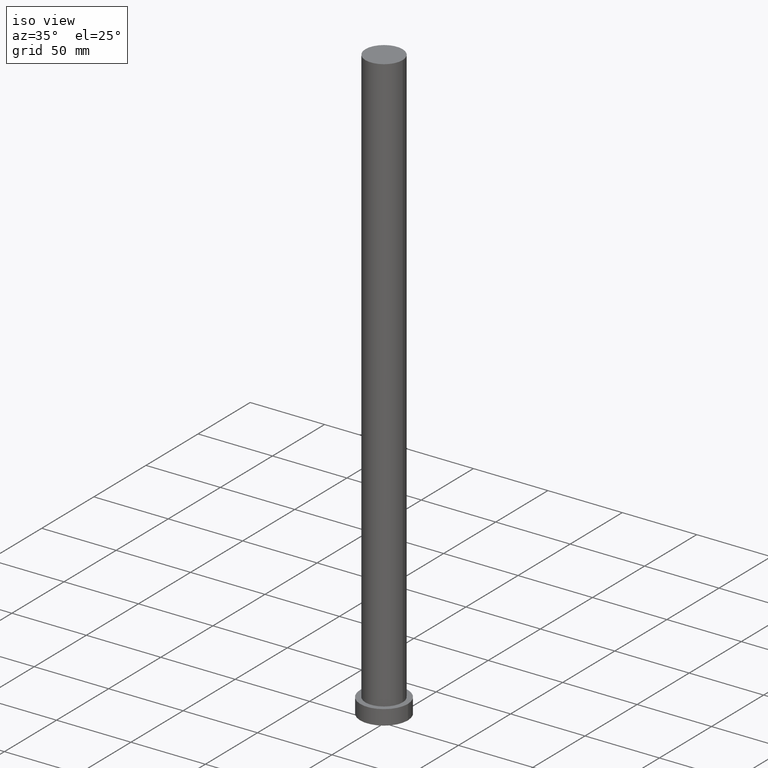
[diagram: clean part render]
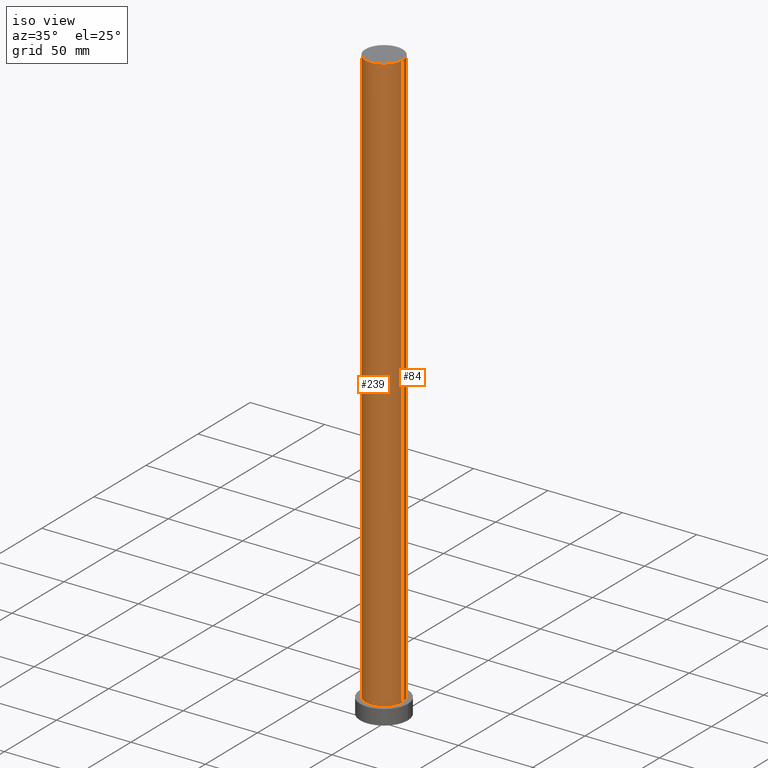
[diagram: same view with one multi-face feature highlighted, each face labeled with its STEP entity id]
A machine part, iso view. The highlighted faces form ONE feature: a constant-radius fillet chain: 2 tangent blend faces with common blend radius 12.5 mm. The faces share edges in the B-rep.
Their STEP definitions:
[1] entity #84 (Cylinder):
#11 = DIRECTION ( 'NONE',  ( 0.000000000000000000, 0.000000000000000000, 1.000000000000000000 ) ) ;
#14 = DIRECTION ( 'NONE',  ( -1.000000000000000000, 0.000000000000000000, 0.000000000000000000 ) ) ;
#19 = DIRECTION ( 'NONE',  ( 1.000000000000000000, 0.000000000000000000, 0.000000000000000000 ) ) ;
#25 = EDGE_CURVE ( 'NONE', #232, #41, #161, .T. ) ;
#33 = CIRCLE ( 'NONE', #216, 12.50000000000000000 ) ;
#34 = DIRECTION ( 'NONE',  ( -0.000000000000000000, -0.000000000000000000, -1.000000000000000000 ) ) ;
#40 = ORIENTED_EDGE ( 'NONE', *, *, #106, .T. ) ;
#41 = VERTEX_POINT ( 'NONE', #211 ) ;
#42 = ORIENTED_EDGE ( 'NONE', *, *, #25, .F. ) ;
#46 = AXIS2_PLACEMENT_3D ( 'NONE', #177, #115, #14 ) ;
#57 = DIRECTION ( 'NONE',  ( -0.000000000000000000, -0.000000000000000000, -1.000000000000000000 ) ) ;
#73 = LINE ( 'NONE', #157, #187 ) ;
#74 = CYLINDRICAL_SURFACE ( 'NONE', #46, 12.50000000000000000 ) ;
#77 = EDGE_CURVE ( 'NONE', #164, #232, #33, .T. ) ;
#80 = CARTESIAN_POINT ( 'NONE',  ( -12.50000000000000000, 0.000000000000000000, 400.0000000000000000 ) ) ;
#84 = ADVANCED_FACE ( 'NONE', ( #89 ), #74, .T. ) ;
#89 = FACE_OUTER_BOUND ( 'NONE', #234, .T. ) ;
#91 = CARTESIAN_POINT ( 'NONE',  ( 0.000000000000000000, 0.000000000000000000, 400.0000000000000000 ) ) ;
#96 = DIRECTION ( 'NONE',  ( 0.000000000000000000, 0.000000000000000000, 1.000000000000000000 ) ) ;
#106 = EDGE_CURVE ( 'NONE', #164, #186, #73, .T. ) ;
#114 = CARTESIAN_POINT ( 'NONE',  ( 12.50000000000000000, 1.530808498934191521E-15, 10.00000000000000000 ) ) ;
#115 = DIRECTION ( 'NONE',  ( -0.000000000000000000, -0.000000000000000000, -1.000000000000000000 ) ) ;
#123 = ORIENTED_EDGE ( 'NONE', *, *, #77, .F. ) ;
#128 = AXIS2_PLACEMENT_3D ( 'NONE', #222, #96, #19 ) ;
#145 = ORIENTED_EDGE ( 'NONE', *, *, #199, .T. ) ;
#150 = VECTOR ( 'NONE', #57, 1000.000000000000000 ) ;
#157 = CARTESIAN_POINT ( 'NONE',  ( 12.50000000000000000, 1.530808498934191521E-15, 400.0000000000000000 ) ) ;
#161 = LINE ( 'NONE', #215, #150 ) ;
#164 = VERTEX_POINT ( 'NONE', #175 ) ;
#175 = CARTESIAN_POINT ( 'NONE',  ( 12.50000000000000000, 1.530808498934191521E-15, 400.0000000000000000 ) ) ;
#177 = CARTESIAN_POINT ( 'NONE',  ( 0.000000000000000000, 0.000000000000000000, 400.0000000000000000 ) ) ;
#186 = VERTEX_POINT ( 'NONE', #114 ) ;
#187 = VECTOR ( 'NONE', #34, 1000.000000000000000 ) ;
#195 = DIRECTION ( 'NONE',  ( 1.000000000000000000, 0.000000000000000000, 0.000000000000000000 ) ) ;
#199 = EDGE_CURVE ( 'NONE', #186, #41, #221, .T. ) ;
#211 = CARTESIAN_POINT ( 'NONE',  ( -12.50000000000000000, 0.000000000000000000, 10.00000000000000000 ) ) ;
#215 = CARTESIAN_POINT ( 'NONE',  ( -12.50000000000000000, 0.000000000000000000, 400.0000000000000000 ) ) ;
#216 = AXIS2_PLACEMENT_3D ( 'NONE', #91, #11, #195 ) ;
#221 = CIRCLE ( 'NONE', #128, 12.50000000000000000 ) ;
#222 = CARTESIAN_POINT ( 'NONE',  ( 0.000000000000000000, 0.000000000000000000, 10.00000000000000000 ) ) ;
#232 = VERTEX_POINT ( 'NONE', #80 ) ;
#234 = EDGE_LOOP ( 'NONE', ( #123, #40, #145, #42 ) ) ;
[2] entity #239 (Cylinder):
#21 = AXIS2_PLACEMENT_3D ( 'NONE', #113, #231, #69 ) ;
#25 = EDGE_CURVE ( 'NONE', #232, #41, #161, .T. ) ;
#34 = DIRECTION ( 'NONE',  ( -0.000000000000000000, -0.000000000000000000, -1.000000000000000000 ) ) ;
#41 = VERTEX_POINT ( 'NONE', #211 ) ;
#57 = DIRECTION ( 'NONE',  ( -0.000000000000000000, -0.000000000000000000, -1.000000000000000000 ) ) ;
#58 = DIRECTION ( 'NONE',  ( 1.000000000000000000, 0.000000000000000000, 0.000000000000000000 ) ) ;
#69 = DIRECTION ( 'NONE',  ( 1.000000000000000000, 0.000000000000000000, 0.000000000000000000 ) ) ;
#73 = LINE ( 'NONE', #157, #187 ) ;
#75 = DIRECTION ( 'NONE',  ( 0.000000000000000000, 0.000000000000000000, 1.000000000000000000 ) ) ;
#78 = ORIENTED_EDGE ( 'NONE', *, *, #106, .F. ) ;
#80 = CARTESIAN_POINT ( 'NONE',  ( -12.50000000000000000, 0.000000000000000000, 400.0000000000000000 ) ) ;
#100 = CARTESIAN_POINT ( 'NONE',  ( 0.000000000000000000, 0.000000000000000000, 400.0000000000000000 ) ) ;
#106 = EDGE_CURVE ( 'NONE', #164, #186, #73, .T. ) ;
#112 = AXIS2_PLACEMENT_3D ( 'NONE', #203, #254, #163 ) ;
#113 = CARTESIAN_POINT ( 'NONE',  ( 0.000000000000000000, 0.000000000000000000, 10.00000000000000000 ) ) ;
#114 = CARTESIAN_POINT ( 'NONE',  ( 12.50000000000000000, 1.530808498934191521E-15, 10.00000000000000000 ) ) ;
#117 = CYLINDRICAL_SURFACE ( 'NONE', #112, 12.50000000000000000 ) ;
#119 = ORIENTED_EDGE ( 'NONE', *, *, #25, .T. ) ;
#121 = EDGE_CURVE ( 'NONE', #41, #186, #135, .T. ) ;
#135 = CIRCLE ( 'NONE', #21, 12.50000000000000000 ) ;
#147 = FACE_OUTER_BOUND ( 'NONE', #166, .T. ) ;
#150 = VECTOR ( 'NONE', #57, 1000.000000000000000 ) ;
#157 = CARTESIAN_POINT ( 'NONE',  ( 12.50000000000000000, 1.530808498934191521E-15, 400.0000000000000000 ) ) ;
#161 = LINE ( 'NONE', #215, #150 ) ;
#163 = DIRECTION ( 'NONE',  ( -1.000000000000000000, 0.000000000000000000, 0.000000000000000000 ) ) ;
#164 = VERTEX_POINT ( 'NONE', #175 ) ;
#166 = EDGE_LOOP ( 'NONE', ( #78, #219, #119, #204 ) ) ;
#175 = CARTESIAN_POINT ( 'NONE',  ( 12.50000000000000000, 1.530808498934191521E-15, 400.0000000000000000 ) ) ;
#186 = VERTEX_POINT ( 'NONE', #114 ) ;
#187 = VECTOR ( 'NONE', #34, 1000.000000000000000 ) ;
#203 = CARTESIAN_POINT ( 'NONE',  ( 0.000000000000000000, 0.000000000000000000, 400.0000000000000000 ) ) ;
#204 = ORIENTED_EDGE ( 'NONE', *, *, #121, .T. ) ;
#211 = CARTESIAN_POINT ( 'NONE',  ( -12.50000000000000000, 0.000000000000000000, 10.00000000000000000 ) ) ;
#215 = CARTESIAN_POINT ( 'NONE',  ( -12.50000000000000000, 0.000000000000000000, 400.0000000000000000 ) ) ;
#218 = AXIS2_PLACEMENT_3D ( 'NONE', #100, #75, #58 ) ;
#219 = ORIENTED_EDGE ( 'NONE', *, *, #224, .F. ) ;
#224 = EDGE_CURVE ( 'NONE', #232, #164, #244, .T. ) ;
#231 = DIRECTION ( 'NONE',  ( 0.000000000000000000, 0.000000000000000000, 1.000000000000000000 ) ) ;
#232 = VERTEX_POINT ( 'NONE', #80 ) ;
#239 = ADVANCED_FACE ( 'NONE', ( #147 ), #117, .T. ) ;
#244 = CIRCLE ( 'NONE', #218, 12.50000000000000000 ) ;
#254 = DIRECTION ( 'NONE',  ( -0.000000000000000000, -0.000000000000000000, -1.000000000000000000 ) ) ;